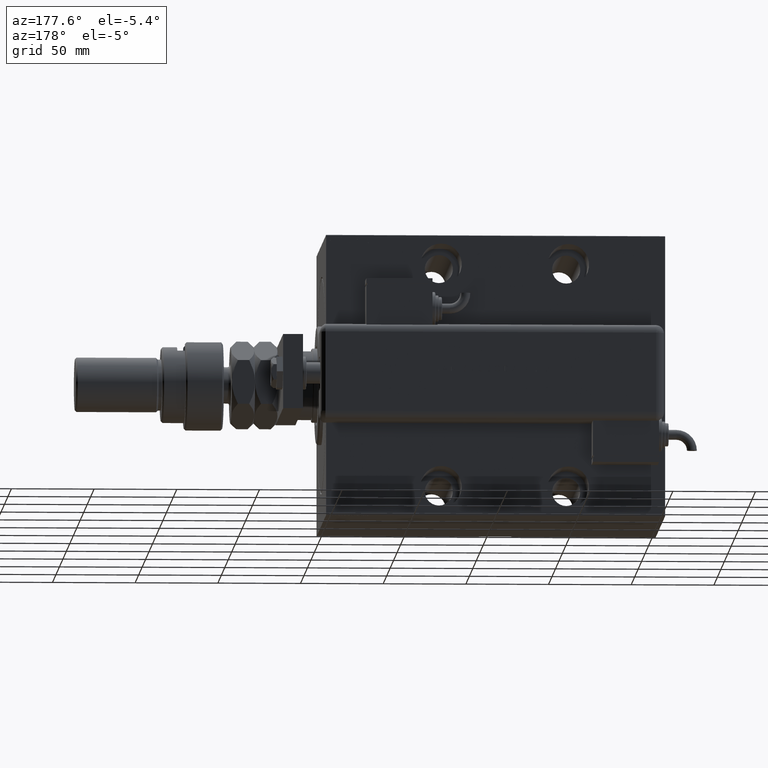
[diagram: clean part render]
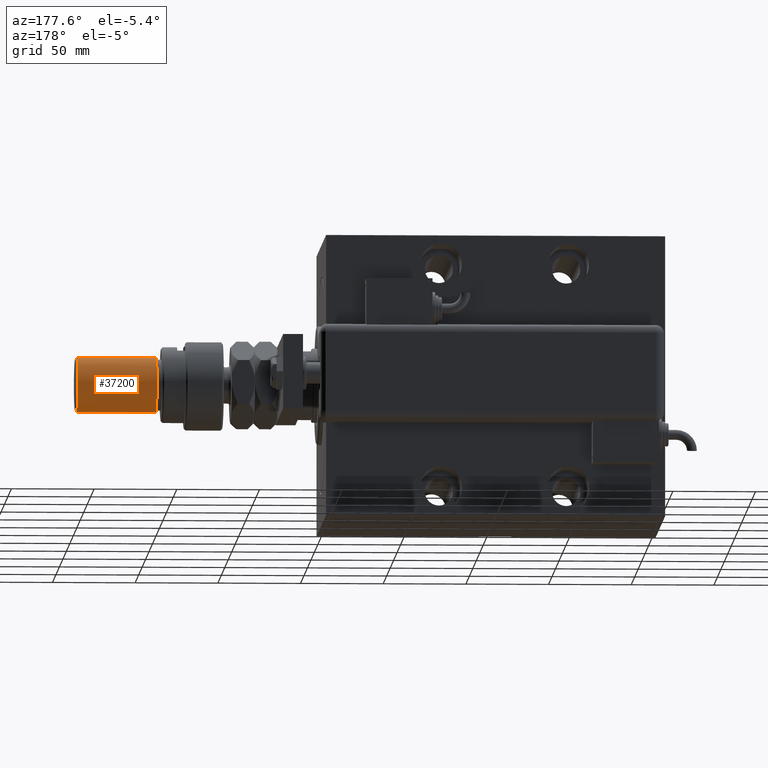
[diagram: same view with one face highlighted and labeled with its STEP entity id]
A machine part, auxiliary view. The second image highlights one B-rep face of the part: STEP entity #37200.
In plain terms, the highlighted cylindrical surface (edge-blend (fillet) strip) has radius 16.5 mm, axis along (-1, -0, 0).
Its self-contained STEP definition (entity closure, byte-faithful):
#2579 = CARTESIAN_POINT ( 'NONE',  ( -16.50000000000000000, 0.000000000000000000, 89.00000000000000000 ) ) ;
#4173 = VERTEX_POINT ( 'NONE', #54719 ) ;
#5029 = AXIS2_PLACEMENT_3D ( 'NONE', #28010, #56399, #47000 ) ;
#6338 = ORIENTED_EDGE ( 'NONE', *, *, #26637, .T. ) ;
#6555 = AXIS2_PLACEMENT_3D ( 'NONE', #9715, #37425, #56449 ) ;
#9715 = CARTESIAN_POINT ( 'NONE',  ( 0.000000000000000000, 0.000000000000000000, 39.99999999999998579 ) ) ;
#9760 = VECTOR ( 'NONE', #23232, 1000.000000000000000 ) ;
#11306 = DIRECTION ( 'NONE',  ( -0.000000000000000000, -0.000000000000000000, -1.000000000000000000 ) ) ;
#12079 = VECTOR ( 'NONE', #11306, 1000.000000000000000 ) ;
#15669 = LINE ( 'NONE', #2579, #12079 ) ;
#16450 = VERTEX_POINT ( 'NONE', #40248 ) ;
#17023 = VERTEX_POINT ( 'NONE', #34183 ) ;
#20328 = EDGE_CURVE ( 'NONE', #16450, #17023, #15669, .T. ) ;
#23186 = ORIENTED_EDGE ( 'NONE', *, *, #61198, .T. ) ;
#23232 = DIRECTION ( 'NONE',  ( -0.000000000000000000, -0.000000000000000000, -1.000000000000000000 ) ) ;
#26463 = CIRCLE ( 'NONE', #6555, 16.50000000000000000 ) ;
#26637 = EDGE_CURVE ( 'NONE', #4173, #41747, #61526, .T. ) ;
#28010 = CARTESIAN_POINT ( 'NONE',  ( 0.000000000000000000, 0.000000000000000000, 89.00000000000000000 ) ) ;
#28172 = CARTESIAN_POINT ( 'NONE',  ( 0.000000000000000000, 0.000000000000000000, 88.00000000000001421 ) ) ;
#33605 = CARTESIAN_POINT ( 'NONE',  ( 16.50000000000000000, 2.020667218593133100E-15, 39.99999999999998579 ) ) ;
#34183 = CARTESIAN_POINT ( 'NONE',  ( -16.50000000000000000, 0.000000000000000000, 39.99999999999998579 ) ) ;
#37200 = ADVANCED_FACE ( 'NONE', ( #38279 ), #37371, .T. ) ;
#37371 = CYLINDRICAL_SURFACE ( 'NONE', #5029, 16.50000000000000000 ) ;
#37425 = DIRECTION ( 'NONE',  ( -0.000000000000000000, -0.000000000000000000, 1.000000000000000000 ) ) ;
#37531 = DIRECTION ( 'NONE',  ( 1.000000000000000000, 0.000000000000000000, 0.000000000000000000 ) ) ;
#38090 = EDGE_LOOP ( 'NONE', ( #61112, #6338, #23186, #48968 ) ) ;
#38279 = FACE_OUTER_BOUND ( 'NONE', #38090, .T. ) ;
#39062 = CIRCLE ( 'NONE', #44049, 16.50000000000000000 ) ;
#40248 = CARTESIAN_POINT ( 'NONE',  ( -16.50000000000000000, 0.000000000000000000, 88.00000000000001421 ) ) ;
#41747 = VERTEX_POINT ( 'NONE', #33605 ) ;
#42227 = EDGE_CURVE ( 'NONE', #16450, #4173, #39062, .T. ) ;
#44049 = AXIS2_PLACEMENT_3D ( 'NONE', #28172, #47475, #37531 ) ;
#47000 = DIRECTION ( 'NONE',  ( -1.000000000000000000, 0.000000000000000000, 0.000000000000000000 ) ) ;
#47475 = DIRECTION ( 'NONE',  ( 0.000000000000000000, 0.000000000000000000, -1.000000000000000000 ) ) ;
#48968 = ORIENTED_EDGE ( 'NONE', *, *, #20328, .F. ) ;
#54719 = CARTESIAN_POINT ( 'NONE',  ( 16.50000000000000000, 2.020667218593133100E-15, 88.00000000000001421 ) ) ;
#56399 = DIRECTION ( 'NONE',  ( -0.000000000000000000, -0.000000000000000000, -1.000000000000000000 ) ) ;
#56449 = DIRECTION ( 'NONE',  ( 1.000000000000000000, 0.000000000000000000, 0.000000000000000000 ) ) ;
#57464 = CARTESIAN_POINT ( 'NONE',  ( 16.50000000000000000, 2.020667218593133100E-15, 89.00000000000000000 ) ) ;
#61112 = ORIENTED_EDGE ( 'NONE', *, *, #42227, .T. ) ;
#61198 = EDGE_CURVE ( 'NONE', #41747, #17023, #26463, .T. ) ;
#61526 = LINE ( 'NONE', #57464, #9760 ) ;